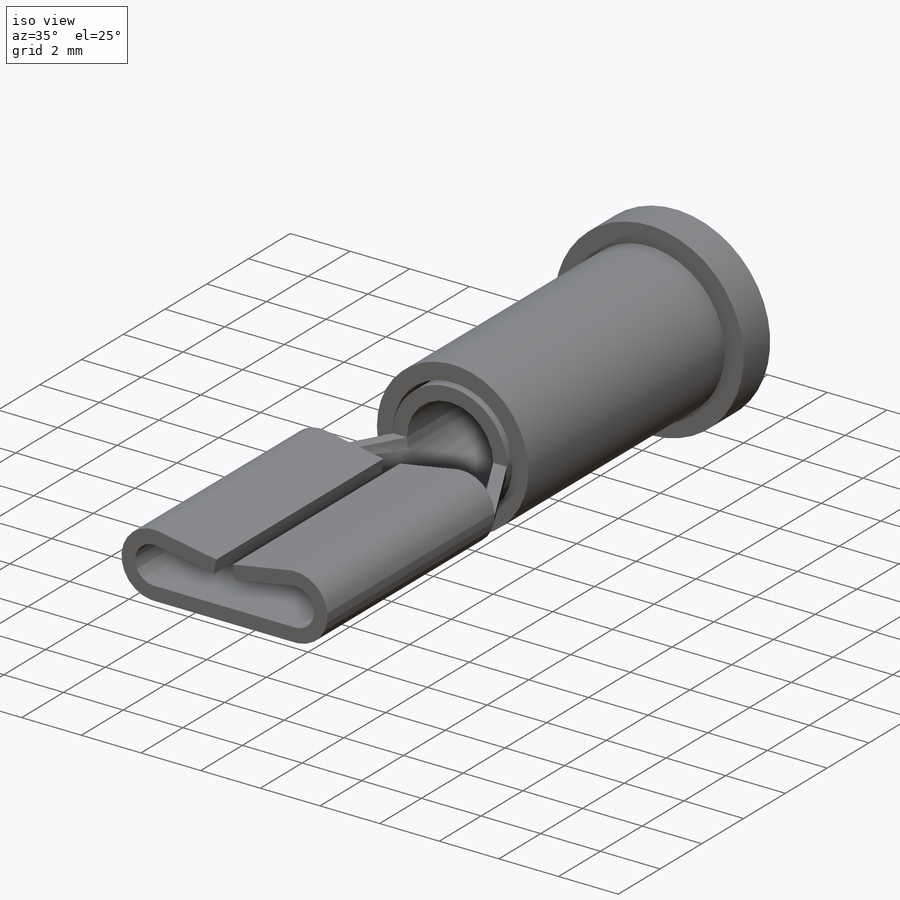
[diagram: iso view]
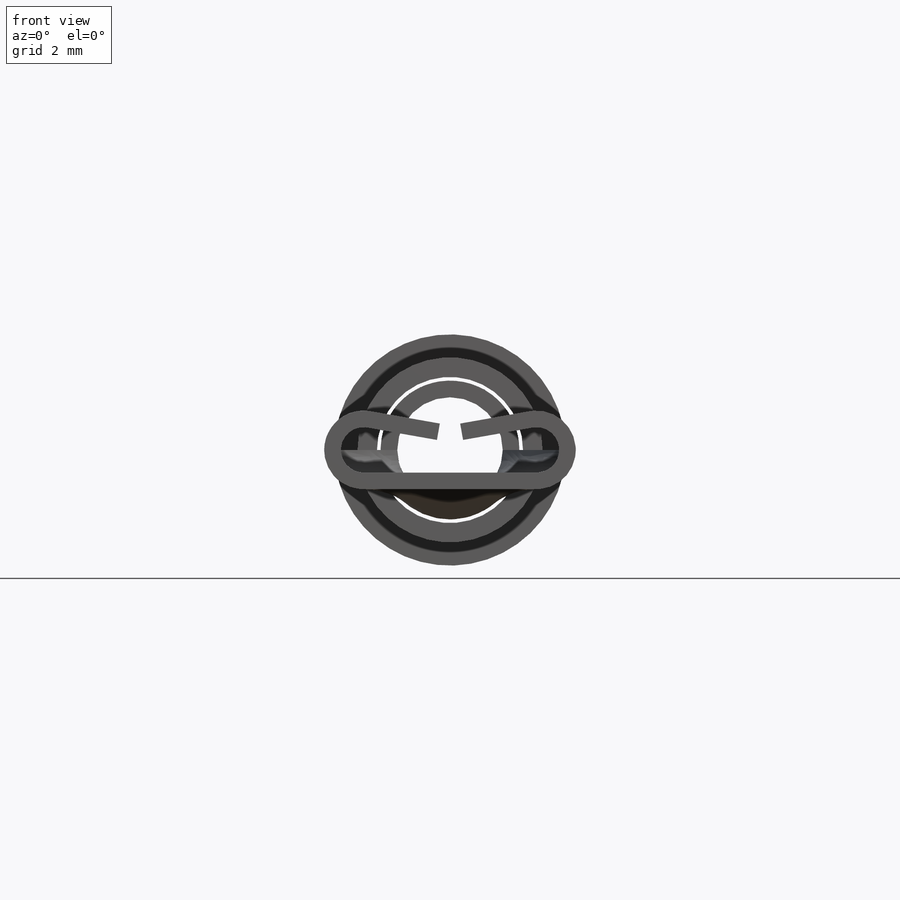
[diagram: front view]
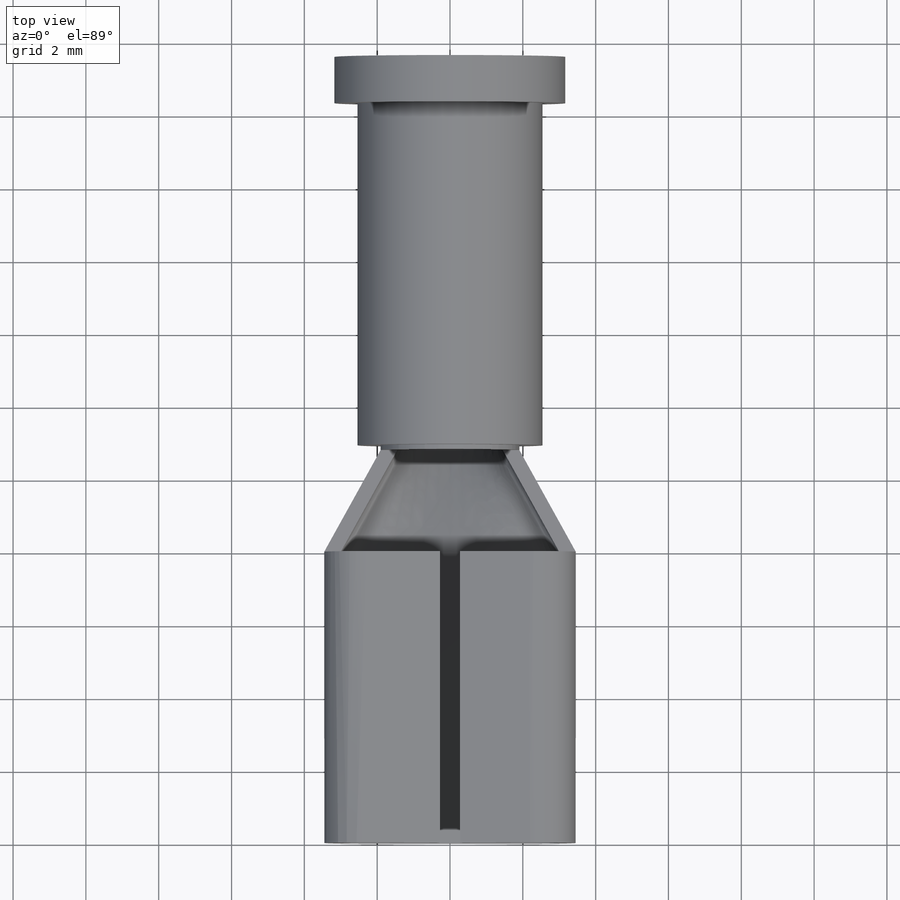
[diagram: top view]
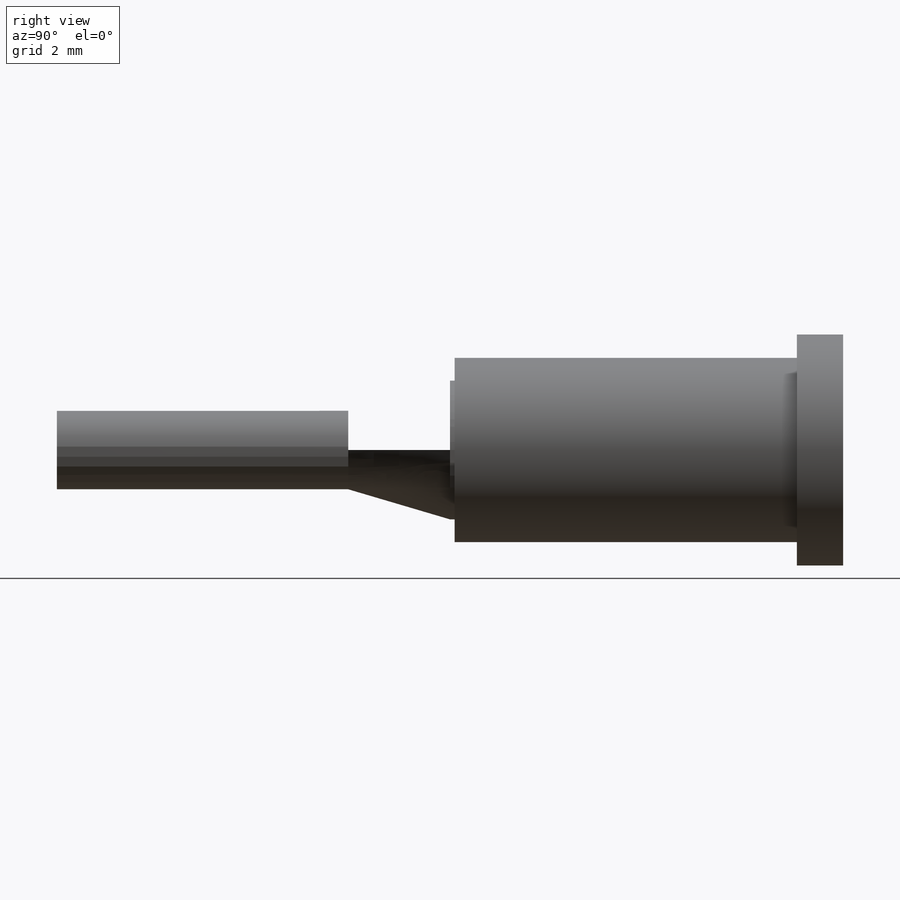
[diagram: right view]
SOLIDWORKS PART (.sldprt)
format: sldprt  version: not decoded by parser v0  size: 489,984 bytes
history: native  units: mm
features: sketch x13, extrude x7, plane x4, fillet x2, material x1, boolean_combine x1, cut_extrude x1 (+12 scaffold rows collapsed)
feature tree (41):
  scaffold x12  (default folders/planes/origin — collapsed)
  material  "Material <not specified>"
  sketch  "Sketch1"  dims[c1.D2=~7.456294mm c1.D3=1.0795mm c2.D2=1.0795mm c2.D1=3.937mm c3.D2=2.159mm c3.D3=3.175mm c3.D4=5.715mm c4.D4=10.0deg c4.D6=5.715mm c4.D1=4.7498mm c4.D5=0.4572mm]
  extrude  "Extrude1"  Depth=8.001mm
  plane  "Plane1"  Offset=20.32mm
  sketch  "Sketch2"  dims[D1=3.81mm D2=0.4572mm]
  extrude  "Extrude2"  Depth=9.525mm
  sketch  "Sketch3"
  sketch  "Sketch4"
  sketch  "Sketch5"
  sketch  "3DSketch1"
  sketch  "3DSketch2"
  sketch  "Sketch7"  dims[D1=5.461mm D4=1.143mm D2=4.445mm D3=4.445mm D5=0.762mm]
  extrude  "Extrude5"  [1 undecoded]
  plane  "Plane2"  Offset=20.574mm
  sketch  "Sketch8"  dims[D1=0.762mm]
  extrude  "Extrude8"  [1 undecoded]
  plane  "Plane3"
  sketch  "Sketch9"  dims[c1.D1=5.0165mm c2.D1=55.0deg]
  extrude  "Extrude10"  [1 undecoded]
  fillet  "Fillet1"  Radius=1.016mm
  boolean_combine  "Combine1"
  fillet  "Fillet2"  Radius=1.143mm
  sketch  "Sketch11"  dims[D1=0.0mm]
  cut_extrude  "Cut-Extrude1"  [1 undecoded]
  plane  "Plane4"  Offset=1.27mm
  sketch  "Sketch12"  dims[c1.D1=3.81mm c1.D2=5.08mm c2.D1=0.1mm]
  extrude  "Boss-Extrude1"  Depth=10.668mm
  sketch  "Sketch14"  dims[D2=6.35mm D1=0.0mm]
  extrude  "Boss-Extrude2"  Depth=1.27mm
decode coverage: 14 of 24 modeling features carry decoded parameters
note: ~ marks probable driven/reference dimensions
note: 4 parameter values undecoded
summary: no parameter record found for 4 features
note: suppression state not decoded; provenance and decode notes live in map.json
